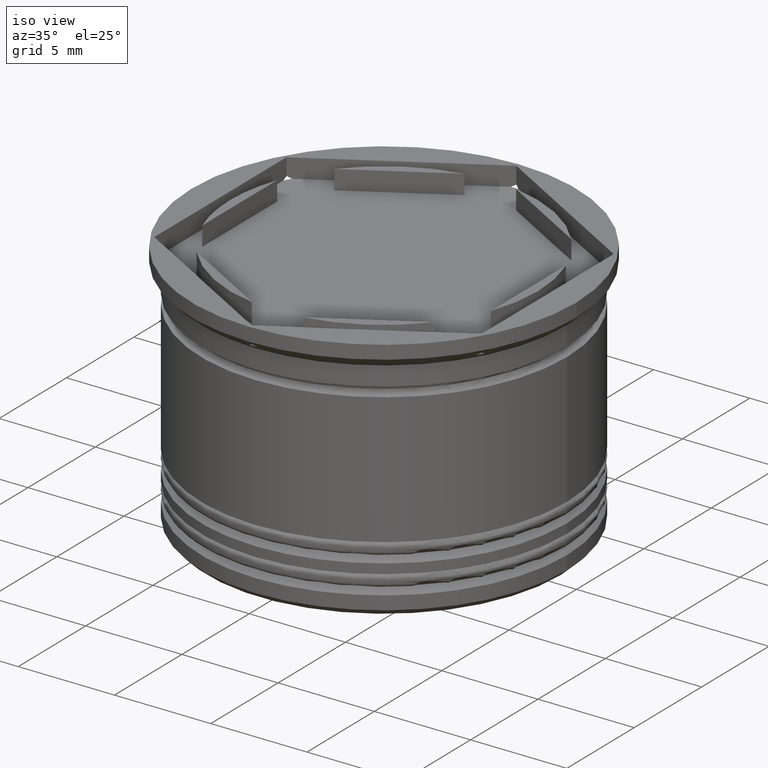
[diagram: clean part render]
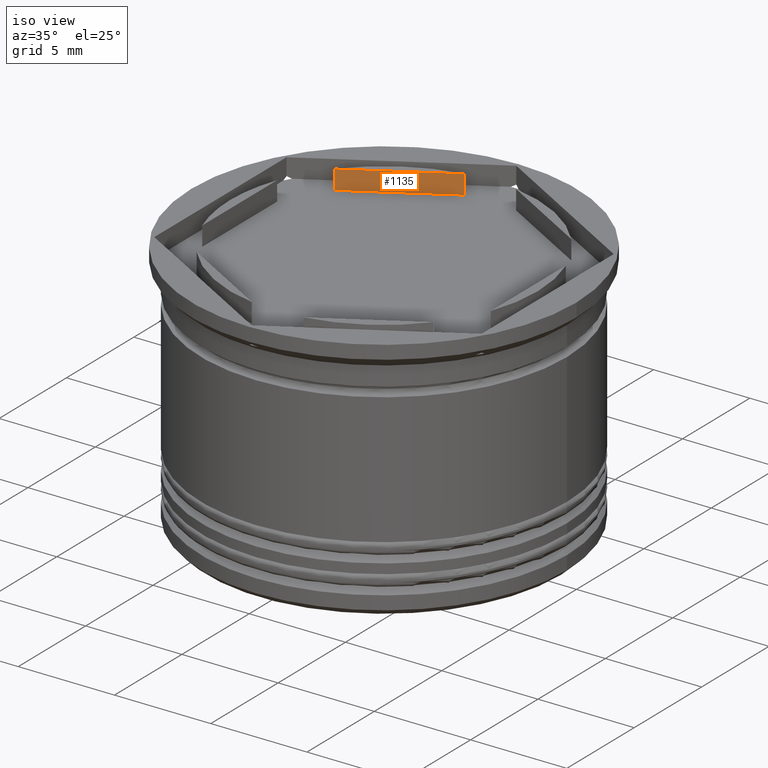
[diagram: same view with one face highlighted and labeled with its STEP entity id]
A machine part, iso view. The second image highlights one B-rep face of the part: STEP entity #1135.
In plain terms, the highlighted planar face has unit normal (-0.5, 0.866, 0).
Its self-contained STEP definition (entity closure, byte-faithful):
#99 = FACE_OUTER_BOUND ( 'NONE', #1166, .T. ) ;
#119 = CARTESIAN_POINT ( 'NONE',  ( -6.160912690248237844, 5.103249437675788869, -1.000000000000000888 ) ) ;
#151 = EDGE_CURVE ( 'NONE', #1644, #2128, #1524, .T. ) ;
#289 = ORIENTED_EDGE ( 'NONE', *, *, #731, .F. ) ;
#309 = DIRECTION ( 'NONE',  ( 0.8660254037844387076, 0.5000000000000001110, -0.000000000000000000 ) ) ;
#428 = VECTOR ( 'NONE', #905, 999.9999999999998863 ) ;
#469 = VERTEX_POINT ( 'NONE', #1907 ) ;
#482 = DIRECTION ( 'NONE',  ( 0.000000000000000000, 0.000000000000000000, 1.000000000000000000 ) ) ;
#515 = EDGE_CURVE ( 'NONE', #469, #1227, #1072, .T. ) ;
#636 = VECTOR ( 'NONE', #2023, 1000.000000000000000 ) ;
#640 = LINE ( 'NONE', #1979, #769 ) ;
#680 = CARTESIAN_POINT ( 'NONE',  ( -1.339087309751759047, 7.887131619090796519, 22.62741699796951522 ) ) ;
#731 = EDGE_CURVE ( 'NONE', #1644, #1227, #640, .T. ) ;
#769 = VECTOR ( 'NONE', #482, 1000.000000000000000 ) ;
#860 = EDGE_CURVE ( 'NONE', #469, #2128, #1686, .T. ) ;
#895 = ORIENTED_EDGE ( 'NONE', *, *, #151, .T. ) ;
#905 = DIRECTION ( 'NONE',  ( -0.8660254037844387076, -0.5000000000000001110, -0.000000000000000000 ) ) ;
#950 = CARTESIAN_POINT ( 'NONE',  ( 0.000000000000000000, 8.660254037844387298, -23.91287847477920181 ) ) ;
#1072 = LINE ( 'NONE', #1748, #428 ) ;
#1135 = ADVANCED_FACE ( 'NONE', ( #99 ), #1436, .F. ) ;
#1166 = EDGE_LOOP ( 'NONE', ( #1750, #289, #895, #1710 ) ) ;
#1227 = VERTEX_POINT ( 'NONE', #1682 ) ;
#1436 = PLANE ( 'NONE',  #1861 ) ;
#1524 = LINE ( 'NONE', #1995, #1964 ) ;
#1644 = VERTEX_POINT ( 'NONE', #119 ) ;
#1682 = CARTESIAN_POINT ( 'NONE',  ( -6.160912690248235180, 5.103249437675786204, 0.000000000000000000 ) ) ;
#1686 = LINE ( 'NONE', #680, #636 ) ;
#1710 = ORIENTED_EDGE ( 'NONE', *, *, #860, .F. ) ;
#1748 = CARTESIAN_POINT ( 'NONE',  ( -3.750000000000000000, 6.495190528383289141, 0.000000000000000000 ) ) ;
#1750 = ORIENTED_EDGE ( 'NONE', *, *, #515, .T. ) ;
#1830 = CARTESIAN_POINT ( 'NONE',  ( -1.339087309751765487, 7.887131619090796519, -1.000000000000000888 ) ) ;
#1861 = AXIS2_PLACEMENT_3D ( 'NONE', #950, #2100, #1941 ) ;
#1907 = CARTESIAN_POINT ( 'NONE',  ( -1.339087309751765487, 7.887131619090796519, 0.000000000000000000 ) ) ;
#1941 = DIRECTION ( 'NONE',  ( -0.8660254037844385966, -0.5000000000000000000, 0.000000000000000000 ) ) ;
#1964 = VECTOR ( 'NONE', #309, 999.9999999999998863 ) ;
#1979 = CARTESIAN_POINT ( 'NONE',  ( -6.160912690248240509, 5.103249437675782652, 22.62741699796951522 ) ) ;
#1995 = CARTESIAN_POINT ( 'NONE',  ( 0.000000000000000000, 8.660254037844387298, -1.000000000000000888 ) ) ;
#2023 = DIRECTION ( 'NONE',  ( -0.000000000000000000, -0.000000000000000000, -1.000000000000000000 ) ) ;
#2100 = DIRECTION ( 'NONE',  ( -0.5000000000000001110, 0.8660254037844387076, 0.000000000000000000 ) ) ;
#2128 = VERTEX_POINT ( 'NONE', #1830 ) ;